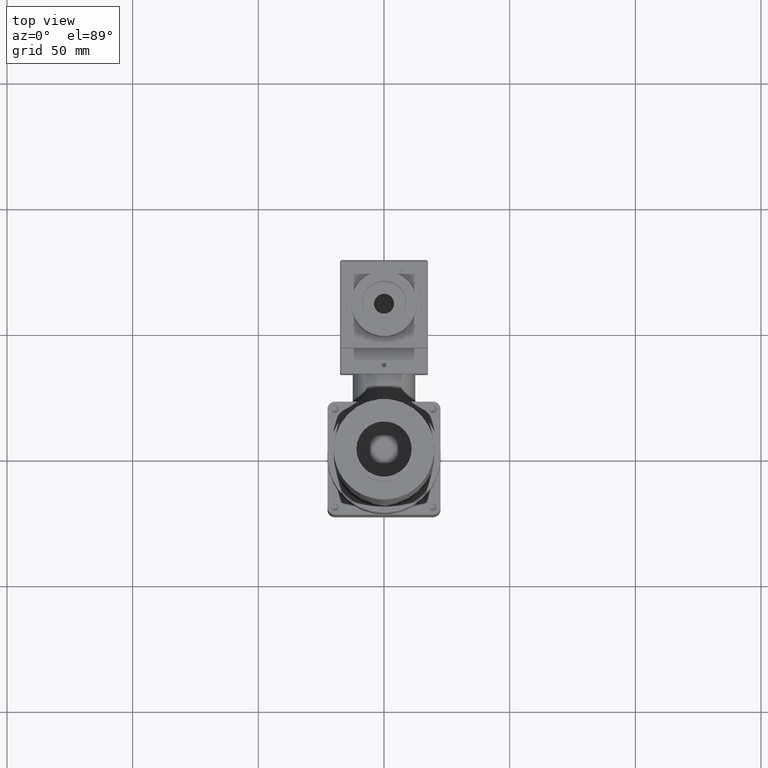
[diagram: clean part render]
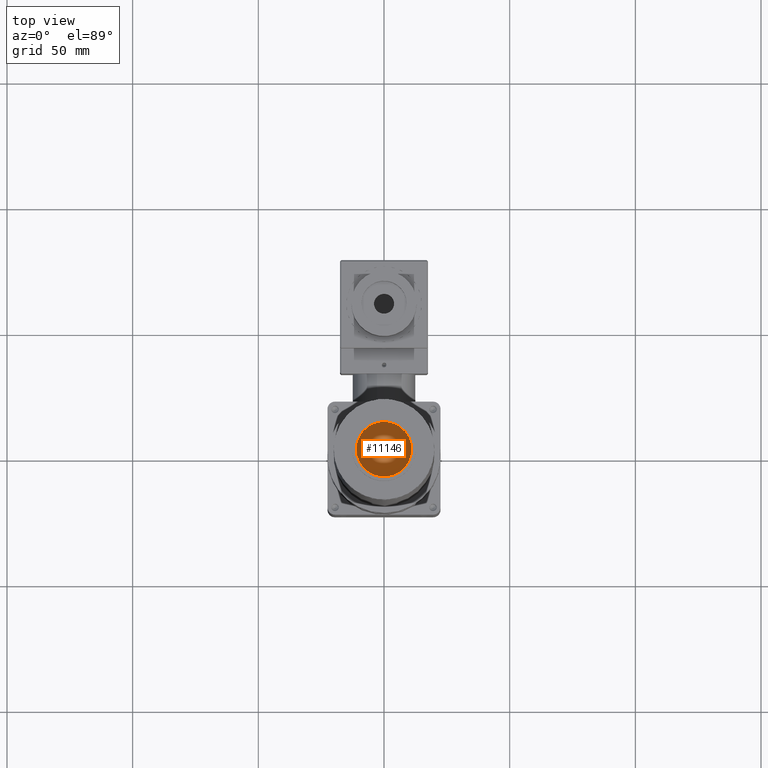
[diagram: same view with one face highlighted and labeled with its STEP entity id]
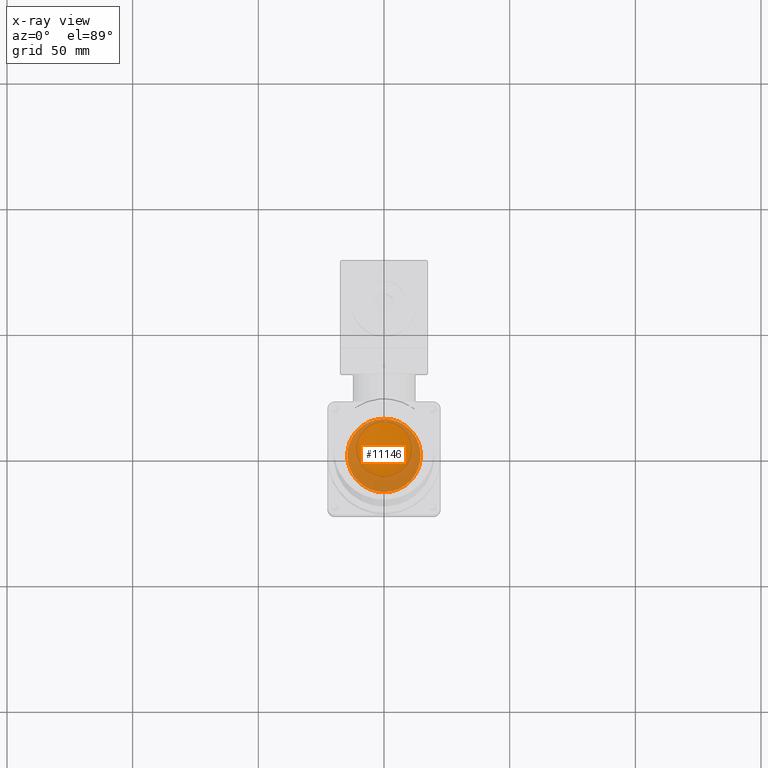
[diagram: x-ray of the same camera — body ghosted, the highlighted face saturated]
A machine part, top view. The second image highlights one B-rep face of the part: STEP entity #11146.
The next image is the same camera in x-ray: the body ghosted, the highlighted face saturated — about 44% of this face is hidden behind the body in this view.
In plain terms, the highlighted face is a freeform B-spline surface patch.
Its self-contained STEP definition (entity closure, byte-faithful):
#49 = CARTESIAN_POINT ( 'NONE',  ( 13.98928892829389703, 4.179047242817293117, 119.0000690100121403 ) ) ;
#102 = CARTESIAN_POINT ( 'NONE',  ( 13.33872966119539250, 5.949843723936270479, 119.0000062996622319 ) ) ;
#114 = CARTESIAN_POINT ( 'NONE',  ( 13.96714049367614230, -4.252429247759134334, 119.0000700877132829 ) ) ;
#174 = CARTESIAN_POINT ( 'NONE',  ( 9.714614068935082614, -10.90366322029338697, 119.0000423944047725 ) ) ;
#217 = ORIENTED_EDGE ( 'NONE', *, *, #1592, .T. ) ;
#242 = CARTESIAN_POINT ( 'NONE',  ( 14.30222755252964006, -2.933800978177821150, 118.9999969267368556 ) ) ;
#273 = CARTESIAN_POINT ( 'NONE',  ( 14.82466807185683955, 0.08023840636863302511, 119.1117562294261631 ) ) ;
#290 = CARTESIAN_POINT ( 'NONE',  ( 10.68096695742222124, -9.966510237696988739, 119.0000080796292963 ) ) ;
#341 = CARTESIAN_POINT ( 'NONE',  ( 13.03766405052734001, -6.575546831551150717, 119.0000243958658501 ) ) ;
#348 = CARTESIAN_POINT ( 'NONE',  ( -10.62985472923227981, -10.00958914178367642, 118.9999947137343526 ) ) ;
#381 = CARTESIAN_POINT ( 'NONE',  ( 9.795696448532801526, 19.86343729788184476, 121.9313010061881783 ) ) ;
#405 = CARTESIAN_POINT ( 'NONE',  ( 14.52857055771655226, -1.443983142457307078, 119.0000748554095225 ) ) ;
#459 = CARTESIAN_POINT ( 'NONE',  ( 14.60027691212936496, -0.07459434628204390794, 119.0002271557665381 ) ) ;
#464 = CARTESIAN_POINT ( 'NONE',  ( -14.59800175218796348, 1.907730671523965027, 118.9999713056936343 ) ) ;
#467 = CARTESIAN_POINT ( 'NONE',  ( 3.765347630138454971, 14.24387883867451698, 119.0000323490312297 ) ) ;
#492 = CARTESIAN_POINT ( 'NONE',  ( -29.77247551948546445, -19.75734965845709468, 111.5444585903304500 ) ) ;
#513 = CARTESIAN_POINT ( 'NONE',  ( 14.52490868798187051, -1.480399848986231115, 119.0000723194199992 ) ) ;
#520 = CARTESIAN_POINT ( 'NONE',  ( -14.22600895166551815, 3.797043167130252694, 119.0001207139474388 ) ) ;
#522 = CARTESIAN_POINT ( 'NONE',  ( 1.855219959685775466, 14.59934512551644659, 118.9999999999999858 ) ) ;
#580 = CARTESIAN_POINT ( 'NONE',  ( 14.43477159915174468, -2.190906809910932118, 119.0000405805932076 ) ) ;
#631 = CARTESIAN_POINT ( 'NONE',  ( 14.31804898287858308, -2.855429322156375793, 118.9999998998747941 ) ) ;
#682 = CARTESIAN_POINT ( 'NONE',  ( 13.97228324150767342, 4.235496302304653682, 119.0000694130087311 ) ) ;
#744 = CARTESIAN_POINT ( 'NONE',  ( 14.59467593595159940, 0.3982335792026396315, 119.0000185371151531 ) ) ;
#800 = CARTESIAN_POINT ( 'NONE',  ( 14.32289370990418220, 2.831027489430706368, 118.9999997095734869 ) ) ;
#854 = CARTESIAN_POINT ( 'NONE',  ( 14.44682934857237377, 2.109891053520653426, 119.0000401461200141 ) ) ;
#863 = CARTESIAN_POINT ( 'NONE',  ( 0.9248576082582978808, -14.60000000000000497, 119.0000000000000284 ) ) ;
#907 = CARTESIAN_POINT ( 'NONE',  ( 14.28196142005104186, 3.036931782279541192, 119.0000028630228854 ) ) ;
#974 = CARTESIAN_POINT ( 'NONE',  ( 13.15549509817016016, 6.350052910102553128, 119.0000252311006221 ) ) ;
#1040 = CARTESIAN_POINT ( 'NONE',  ( 6.469028436434528295, -13.12317483090877523, 119.0000155625834282 ) ) ;
#1096 = CARTESIAN_POINT ( 'NONE',  ( 14.20670203760342076, -3.367909880668667810, 118.9999797085169604 ) ) ;
#1141 = CARTESIAN_POINT ( 'NONE',  ( 14.71761847851205296, -0.06068584820352353887, 119.0579979190972466 ) ) ;
#1159 = CARTESIAN_POINT ( 'NONE',  ( 11.81073837458024300, -8.583733236572633984, 119.0000102345877195 ) ) ;
#1212 = CARTESIAN_POINT ( 'NONE',  ( 1.864606323168534585, -14.51194095197632095, 119.0000020767830762 ) ) ;
#1260 = CARTESIAN_POINT ( 'NONE',  ( 13.95586297795224517, -4.289328123243763002, 119.0000700516053485 ) ) ;
#1269 = CARTESIAN_POINT ( 'NONE',  ( -10.35267085353996919, -10.29480618701033912, 118.9999995363242249 ) ) ;
#1327 = CARTESIAN_POINT ( 'NONE',  ( 14.59525915230382864, -0.3734320472299847982, 119.0000174112504823 ) ) ;
#1334 = CARTESIAN_POINT ( 'NONE',  ( -5.524749319673690096, 13.51436039450954496, 118.9999991317488224 ) ) ;
#1336 = CARTESIAN_POINT ( 'NONE',  ( 5.974420244952454162, 13.32260250705850702, 119.0000088338948245 ) ) ;
#1380 = CARTESIAN_POINT ( 'NONE',  ( 14.44053562068167551, -2.152572433472477620, 119.0000442795786455 ) ) ;
#1386 = CARTESIAN_POINT ( 'NONE',  ( -7.751498990942753409, -12.38144902165378092, 118.9999717917618653 ) ) ;
#1433 = CARTESIAN_POINT ( 'NONE',  ( 14.47944028091374591, -1.876462696455243773, 119.0000194760932573 ) ) ;
#1439 = CARTESIAN_POINT ( 'NONE',  ( 12.20867790721635870, 8.006884758085238474, 118.9999988546815075 ) ) ;
#1495 = CARTESIAN_POINT ( 'NONE',  ( 14.50742051849411851, -1.643122727523406823, 119.0000373615438747 ) ) ;
#1506 = CARTESIAN_POINT ( 'NONE',  ( 6.673619439106158069, 12.98787495256370939, 119.0000881097719656 ) ) ;
#1551 = CARTESIAN_POINT ( 'NONE',  ( 14.46663529035589590, 1.969626311071227320, 119.0000318366065244 ) ) ;
#1592 = EDGE_CURVE ( 'NONE', #2819, #3998, #8576, .T. ) ;
#1600 = CARTESIAN_POINT ( 'NONE',  ( 14.53335265514515662, 1.394994577751365483, 119.0000705685189502 ) ) ;
#1662 = CARTESIAN_POINT ( 'NONE',  ( 14.15072522626515550, 3.596051165808515471, 119.0000055854096104 ) ) ;
#1729 = CARTESIAN_POINT ( 'NONE',  ( 14.58966277535328970, 0.5404924055974814623, 118.9998228932305011 ) ) ;
#1778 = CARTESIAN_POINT ( 'NONE',  ( 14.32016701465447284, 2.844788762333658738, 118.9999999552652810 ) ) ;
#1834 = CARTESIAN_POINT ( 'NONE',  ( 13.72558527100664527, 4.978276956129671582, 119.0000148353040714 ) ) ;
#1914 = CARTESIAN_POINT ( 'NONE',  ( 7.311895014826458095, -12.67356832896732577, 119.0002218127224438 ) ) ;
#1965 = CARTESIAN_POINT ( 'NONE',  ( 14.12082646283292853, -3.717562413015687017, 119.0000066801177212 ) ) ;
#2024 = CARTESIAN_POINT ( 'NONE',  ( 11.00861611815551555, -9.602055939618557190, 119.0000393198989173 ) ) ;
#2031 = CARTESIAN_POINT ( 'NONE',  ( -0.9778323831769982766, 14.60034655814700244, 119.0000000000000568 ) ) ;
#2070 = CARTESIAN_POINT ( 'NONE',  ( -0.7556830652519290759, 7.962329365547625493, 111.3167236061618297 ) ) ;
#2090 = CARTESIAN_POINT ( 'NONE',  ( 12.02519366210445995, -8.280115671545798861, 118.9999995446993637 ) ) ;
#2095 = CARTESIAN_POINT ( 'NONE',  ( -3.808755320672308819, 14.10222328893625132, 118.9999642246897480 ) ) ;
#2139 = CARTESIAN_POINT ( 'NONE',  ( 10.23913881926736380, -10.40773357091714679, 118.9999995661207777 ) ) ;
#2140 = B_SPLINE_CURVE_WITH_KNOTS ( 'NONE', 3,
 ( #9974, #2031, #4523, #9106, #2095, #10890, #5633, #9158, #8049, #3121, #1334, #2316, #3015, #7529, #8511, #2146, #5683, #5805, #3064, #7589, #6672, #10266, #6556, #9333, #11130, #520, #464, #7646, #9210, #6779, #11063, #10095, #3874, #4982, #3989, #348, #4870, #7424, #3189, #1269, #8275, #8395, #1386, #4044, #9278, #10315, #2368, #10957, #10214, #2267, #4808, #6731, #8447, #4925 ),
 .UNSPECIFIED., .F., .F.,
 ( 4, 2, 2, 1, 1, 1, 2, 2, 2, 2, 1, 1, 1, 2, 2, 2, 2, 2, 2, 2, 1, 1, 1, 2, 2, 2, 2, 1, 1, 1, 2, 2, 4 ),
 ( 0.000000000000000000, 0.06250000000000038858, 0.09375000000000061062, 0.1093750000000006939, 0.1171875000000007633, 0.1210937500000008049, 0.1230468750000007910, 0.1250000000000007772, 0.1875000000000007772, 0.2187500000000007772, 0.2343750000000007216, 0.2421875000000007494, 0.2460937500000007494, 0.2480468750000007772, 0.2500000000000007772, 0.3750000000000041078, 0.5000000000000074385, 0.6250000000000107692, 0.6875000000000124345, 0.7187500000000131006, 0.7343750000000134337, 0.7421875000000136557, 0.7460937500000136557, 0.7480468750000136557, 0.7500000000000136557, 0.8125000000000097700, 0.8437500000000076605, 0.8593750000000066613, 0.8671875000000062172, 0.8710937500000059952, 0.8730468750000058842, 0.8750000000000057732, 1.000000000000000000 ),
 .UNSPECIFIED. ) ;
#2146 = CARTESIAN_POINT ( 'NONE',  ( -8.903089967484108413, 11.58088410762506903, 118.9999762462301902 ) ) ;
#2191 = CARTESIAN_POINT ( 'NONE',  ( 14.58152615826987208, -0.7362249415561376020, 119.0000493126072882 ) ) ;
#2204 = CARTESIAN_POINT ( 'NONE',  ( 12.15130119221146998, 8.093573949462475881, 118.9999997378110379 ) ) ;
#2258 = CARTESIAN_POINT ( 'NONE',  ( 14.59987045276160700, -0.1411392709568642934, 119.0002581506835639 ) ) ;
#2267 = CARTESIAN_POINT ( 'NONE',  ( -5.658037405912185847, -13.45910413105343473, 118.9999990347679386 ) ) ;
#2269 = CARTESIAN_POINT ( 'NONE',  ( 12.17532601004629278, 8.057413823661821795, 118.9999992345351671 ) ) ;
#2312 = CARTESIAN_POINT ( 'NONE',  ( 14.59955038554628359, 0.1328104919975333365, 119.0000750403438161 ) ) ;
#2316 = CARTESIAN_POINT ( 'NONE',  ( -5.550268795324982740, 13.50390387813971849, 118.9999995834371589 ) ) ;
#2363 = CARTESIAN_POINT ( 'NONE',  ( 14.59131068973088041, -0.4951297426625539400, 118.9998417244890589 ) ) ;
#2368 = CARTESIAN_POINT ( 'NONE',  ( -5.993346080836650991, -13.31410077060129993, 118.9999929047477423 ) ) ;
#2430 = CARTESIAN_POINT ( 'NONE',  ( 14.39900607478416816, -2.415126154686352056, 119.0000113283831809 ) ) ;
#2442 = CARTESIAN_POINT ( 'NONE',  ( 11.16696013737048609, 9.408392166763924536, 119.0000337861708459 ) ) ;
#2485 = CARTESIAN_POINT ( 'NONE',  ( 14.58357518191412439, 0.6940382050204986220, 119.0000393234377896 ) ) ;
#2535 = CARTESIAN_POINT ( 'NONE',  ( 14.59820401861678540, 0.2270130761094974192, 118.9999696463336676 ) ) ;
#2594 = CARTESIAN_POINT ( 'NONE',  ( 14.53102396274386088, 1.419106311602212900, 119.0000757979401271 ) ) ;
#2654 = CARTESIAN_POINT ( 'NONE',  ( 14.32536138898392863, 2.818530583862024930, 118.9999994560118353 ) ) ;
#2704 = CARTESIAN_POINT ( 'NONE',  ( 14.58854116784995902, 0.5723134533361137199, 118.9998641358514817 ) ) ;
#2764 = CARTESIAN_POINT ( 'NONE',  ( 13.58014283935289157, 5.361644855557284650, 118.9999991373030355 ) ) ;
#2781 = CARTESIAN_POINT ( 'NONE',  ( 3.271269701134130958, -14.23681999567935463, 118.9999997153489488 ) ) ;
#2819 = VERTEX_POINT ( 'NONE', #3904 ) ;
#2843 = CARTESIAN_POINT ( 'NONE',  ( 14.05241491321492298, -3.971890811909712493, 119.0000677434549061 ) ) ;
#2893 = CARTESIAN_POINT ( 'NONE',  ( 14.26763146407217064, -3.097871063183500251, 118.9999860815100021 ) ) ;
#2925 = CARTESIAN_POINT ( 'NONE',  ( 13.28912006610375052, -10.52736241548365648, 118.3697619377703631 ) ) ;
#2947 = CARTESIAN_POINT ( 'NONE',  ( 13.13914949080024286, -6.369635020566779993, 119.0000161566890853 ) ) ;
#3010 = CARTESIAN_POINT ( 'NONE',  ( 13.34546358285479428, -5.922672340287458148, 119.0000010545214195 ) ) ;
#3015 = CARTESIAN_POINT ( 'NONE',  ( -6.479471062013606009, 13.11975610128906489, 119.0000152145591699 ) ) ;
#3057 = CARTESIAN_POINT ( 'NONE',  ( 14.31084620780470473, -2.891345337420156536, 118.9999988772045612 ) ) ;
#3064 = CARTESIAN_POINT ( 'NONE',  ( -10.01987180113928488, 10.62006956923148770, 118.9999935420786841 ) ) ;
#3067 = CARTESIAN_POINT ( 'NONE',  ( 12.14553259607138713, 8.102226881894699417, 118.9999998884410815 ) ) ;
#3113 = CARTESIAN_POINT ( 'NONE',  ( 14.43958681515510811, -2.158920487185440162, 119.0000437396330142 ) ) ;
#3121 = CARTESIAN_POINT ( 'NONE',  ( -5.470940512594712146, 13.53623076056491747, 118.9999981435597505 ) ) ;
#3182 = CARTESIAN_POINT ( 'NONE',  ( 14.51623117732515311, -1.563023562599326954, 119.0000554381137619 ) ) ;
#3189 = CARTESIAN_POINT ( 'NONE',  ( -10.37506877901335045, -10.27223554372394076, 118.9999990586347707 ) ) ;
#3214 = CARTESIAN_POINT ( 'NONE',  ( 5.079057644478827349, -26.12296589638872391, 129.0462488982334435 ) ) ;
#3233 = CARTESIAN_POINT ( 'NONE',  ( 14.52797142169444733, -1.449995506704575332, 119.0000747008784998 ) ) ;
#3280 = CARTESIAN_POINT ( 'NONE',  ( 14.59920185898245926, 0.1564029259556838081, 119.0000184441219915 ) ) ;
#3287 = CARTESIAN_POINT ( 'NONE',  ( 12.50468441804770414, 7.537247800319239133, 119.0000086293549941 ) ) ;
#3350 = CARTESIAN_POINT ( 'NONE',  ( 14.58661051087154625, 0.6228329120942301955, 118.9999467835221623 ) ) ;
#3403 = CARTESIAN_POINT ( 'NONE',  ( 14.59741627950452347, 0.2719104729787903407, 118.9999708932160587 ) ) ;
#3447 = CARTESIAN_POINT ( 'NONE',  ( 14.34213414800471398, 2.732204264907947433, 118.9999970700607150 ) ) ;
#3509 = CARTESIAN_POINT ( 'NONE',  ( 14.53036589810228740, 1.425830954767272507, 119.0000761593803844 ) ) ;
#3567 = CARTESIAN_POINT ( 'NONE',  ( 13.98037488549996787, 4.208726043768688641, 119.0000694311248850 ) ) ;
#3623 = CARTESIAN_POINT ( 'NONE',  ( 13.53703185328160430, 5.469062982271339912, 118.9999988564254068 ) ) ;
#3634 = CARTESIAN_POINT ( 'NONE',  ( 13.45317217791713915, -5.672146343782109135, 118.9999990821347780 ) ) ;
#3676 = CARTESIAN_POINT ( 'NONE',  ( 14.82466698895548873, -0.08023820858660872524, 119.1117556856132751 ) ) ;
#3699 = CARTESIAN_POINT ( 'NONE',  ( 13.89001131572517522, -4.498254821587680752, 119.0000615663203973 ) ) ;
#3760 = CARTESIAN_POINT ( 'NONE',  ( 13.94247529661928731, -4.332745986868966170, 119.0000694035642539 ) ) ;
#3809 = CARTESIAN_POINT ( 'NONE',  ( 12.12044751701390055, -8.139703855369129215, 118.9999996154518982 ) ) ;
#3823 =( BOUNDED_SURFACE ( )  B_SPLINE_SURFACE ( 3, 3, ( 
 ( #3676, #1141, #7225, #273 ),
 ( #2925, #10014, #2070, #3963 ),
 ( #10242, #5882, #6637, #381 ),
 ( #3214, #492, #7504, #10178 ) ),
 .UNSPECIFIED., .F., .F., .F. ) 
 B_SPLINE_SURFACE_WITH_KNOTS ( ( 4, 4 ),
 ( 4, 4 ),
 ( 0.000000000000000000, 1.000000000000000000 ),
 ( 0.000000000000000000, 1.000000000000000000 ),
 .UNSPECIFIED. ) 
 GEOMETRIC_REPRESENTATION_ITEM ( )  RATIONAL_B_SPLINE_SURFACE ( (
 ( 1.000000000000000000, 0.4407231842268208299, 0.4407231842268208299, 1.000000000000000000),
 ( 0.9298291696341497437, 0.4097972724281432333, 0.4097972724281432333, 0.9298291696341497437),
 ( 0.9298291696341497437, 0.4097972724281432333, 0.4097972724281432333, 0.9298291696341497437),
 ( 1.000000000000000000, 0.4407231842268208299, 0.4407231842268208299, 1.000000000000000000) ) ) 
 REPRESENTATION_ITEM ( '' )  SURFACE ( )  );
#3865 = CARTESIAN_POINT ( 'NONE',  ( 5.562670569077392990, -13.49879813905097059, 118.9999995136692661 ) ) ;
#3874 = CARTESIAN_POINT ( 'NONE',  ( -11.61649239523338828, -8.857322732390684905, 119.0000022598496656 ) ) ;
#3904 = CARTESIAN_POINT ( 'NONE',  ( 1.269532981344745348E-14, -14.60000000000002096, 119.0000000000000000 ) ) ;
#3930 = CARTESIAN_POINT ( 'NONE',  ( 14.44082463669707472, -2.150637090930129780, 119.0000444414384475 ) ) ;
#3939 = CARTESIAN_POINT ( 'NONE',  ( 10.41812439099971144, 10.22856926988836967, 118.9999991108431487 ) ) ;
#3963 = CARTESIAN_POINT ( 'NONE',  ( 13.28926214424151730, 10.52738836475656825, 118.3698332867627414 ) ) ;
#3967 = ORIENTED_EDGE ( 'NONE', *, *, #5154, .T. ) ;
#3983 = CARTESIAN_POINT ( 'NONE',  ( 14.59999188274900561, -0.02304323730815311527, 119.0000010140310849 ) ) ;
#3989 = CARTESIAN_POINT ( 'NONE',  ( -10.91939488643627065, -9.696906648994668032, 118.9999924132481084 ) ) ;
#3998 = VERTEX_POINT ( 'NONE', #5804 ) ;
#4036 = CARTESIAN_POINT ( 'NONE',  ( 14.55486930401241885, -1.146785052666193350, 118.9997499764302944 ) ) ;
#4044 = CARTESIAN_POINT ( 'NONE',  ( -7.340408385911892708, -12.62970390515078911, 118.9999724310394527 ) ) ;
#4047 = CARTESIAN_POINT ( 'NONE',  ( 11.00948562631111116, 9.592351683896318093, 119.0000255626550540 ) ) ;
#4108 = CARTESIAN_POINT ( 'NONE',  ( 14.58179233965365640, -0.7309776847401989741, 119.0000503904967104 ) ) ;
#4157 = CARTESIAN_POINT ( 'NONE',  ( 14.59361967059175313, -0.4278617122551847674, 118.9999431776595316 ) ) ;
#4211 = CARTESIAN_POINT ( 'NONE',  ( 13.84417507180882190, 4.643003717423442644, 119.0000414224448519 ) ) ;
#4278 = CARTESIAN_POINT ( 'NONE',  ( 14.45980983664114738, 2.019453768651711556, 119.0000375637882115 ) ) ;
#4330 = CARTESIAN_POINT ( 'NONE',  ( 14.23611441307725478, 3.247909892687532274, 118.9999791642308224 ) ) ;
#4381 = CARTESIAN_POINT ( 'NONE',  ( 14.45125866144191207, 2.079437387523626946, 119.0000404502752218 ) ) ;
#4443 = CARTESIAN_POINT ( 'NONE',  ( 14.58314246620762233, 0.7032660544573680061, 119.0000439290212455 ) ) ;
#4504 = CARTESIAN_POINT ( 'NONE',  ( 13.61529103112130379, 5.271427888746328172, 119.0000011979928871 ) ) ;
#4523 = CARTESIAN_POINT ( 'NONE',  ( -1.945485862357398288, 14.50117177017087045, 118.9999671680666040 ) ) ;
#4570 = CARTESIAN_POINT ( 'NONE',  ( 5.189025847196634622, -13.64772040071652093, 118.9999950695115416 ) ) ;
#4633 = CARTESIAN_POINT ( 'NONE',  ( 14.28427918945573261, -3.020500735288590199, 118.9999913724480507 ) ) ;
#4694 = CARTESIAN_POINT ( 'NONE',  ( 12.10864933980752056, -8.157262007129952863, 118.9999993936874745 ) ) ;
#4742 = CARTESIAN_POINT ( 'NONE',  ( 11.46034045006208402, -9.048713525663471202, 119.0000324675040844 ) ) ;
#4799 = CARTESIAN_POINT ( 'NONE',  ( 14.59943256556232782, 0.1405762060347130193, 119.0000527666465189 ) ) ;
#4808 = CARTESIAN_POINT ( 'NONE',  ( -5.628637839919590213, -13.47142367941740559, 118.9999995441402660 ) ) ;
#4811 = CARTESIAN_POINT ( 'NONE',  ( 5.700698364316311384, 13.44118877251267996, 118.9999992846852450 ) ) ;
#4863 = CARTESIAN_POINT ( 'NONE',  ( 14.59528607313195181, -0.3724633300578543138, 119.0000182423993635 ) ) ;
#4870 = CARTESIAN_POINT ( 'NONE',  ( -10.48196139544552530, -10.16340584304964523, 118.9999969839798126 ) ) ;
#4919 = CARTESIAN_POINT ( 'NONE',  ( 14.59229614148270748, -0.4671391039162589021, 118.9998759200213385 ) ) ;
#4925 = CARTESIAN_POINT ( 'NONE',  ( 1.269532981344745348E-14, -14.60000000000002096, 119.0000000000000000 ) ) ;
#4928 = CARTESIAN_POINT ( 'NONE',  ( 12.70203552006800507, 7.203217175903289693, 119.0000192930102969 ) ) ;
#4976 = CARTESIAN_POINT ( 'NONE',  ( 14.58572981244107325, -0.6515799999741259674, 119.0000430038499957 ) ) ;
#4982 = CARTESIAN_POINT ( 'NONE',  ( -11.15671221969591009, -9.420518124729365894, 118.9999942251402700 ) ) ;
#4985 = CARTESIAN_POINT ( 'NONE',  ( 10.76250961108526738, 9.866315447604607769, 119.0000114054911222 ) ) ;
#5039 = CARTESIAN_POINT ( 'NONE',  ( 14.46237166031628618, -2.005803614010941871, 119.0000553063746764 ) ) ;
#5047 = CARTESIAN_POINT ( 'NONE',  ( 12.16092542322948589, 8.079105137867928832, 118.9999995193259679 ) ) ;
#5088 = CARTESIAN_POINT ( 'NONE',  ( 13.91222959162708506, 4.433435504530917726, 119.0000674712644440 ) ) ;
#5140 = CARTESIAN_POINT ( 'NONE',  ( 14.59615945515249003, 0.3360248062508817690, 119.0000129107789348 ) ) ;
#5154 = EDGE_CURVE ( 'NONE', #3998, #2819, #2140, .T. ) ;
#5204 = CARTESIAN_POINT ( 'NONE',  ( 14.06775755854242149, 3.907076147509837671, 119.0000463715014263 ) ) ;
#5261 = CARTESIAN_POINT ( 'NONE',  ( 14.58281921642349133, 0.7099903689588571432, 119.0000454445172551 ) ) ;
#5314 = CARTESIAN_POINT ( 'NONE',  ( 14.59597076976144692, 0.3444143727491715268, 119.0000162899310823 ) ) ;
#5379 = CARTESIAN_POINT ( 'NONE',  ( 13.51493708139626904, 5.523307501229878014, 118.9999992500779911 ) ) ;
#5454 = CARTESIAN_POINT ( 'NONE',  ( 10.28200243459261642, -10.36538926565945928, 118.9999993444560431 ) ) ;
#5507 = CARTESIAN_POINT ( 'NONE',  ( 4.437784312098523642, -13.91131965906463286, 118.9999946984077184 ) ) ;
#5521 = EDGE_LOOP ( 'NONE', ( #217, #3967 ) ) ;
#5567 = CARTESIAN_POINT ( 'NONE',  ( 5.532977843052628408, -13.51099747838524934, 118.9999990309946583 ) ) ;
#5627 = CARTESIAN_POINT ( 'NONE',  ( 13.47772326405931764, -5.613465579551449203, 118.9999996642281417 ) ) ;
#5633 = CARTESIAN_POINT ( 'NONE',  ( -4.817865856745638276, 13.78559794284548090, 118.9999838518012751 ) ) ;
#5678 = CARTESIAN_POINT ( 'NONE',  ( 13.48418142428638511, -5.597938608619424272, 118.9999998861380988 ) ) ;
#5683 = CARTESIAN_POINT ( 'NONE',  ( -9.450776053779732067, 11.13093098352943855, 118.9999826099744240 ) ) ;
#5734 = CARTESIAN_POINT ( 'NONE',  ( 14.59424046523242779, -0.4088992573073526593, 118.9999797001955386 ) ) ;
#5799 = CARTESIAN_POINT ( 'NONE',  ( 14.60032989645034185, 0.05122719777430768257, 119.0001922240313945 ) ) ;
#5804 = CARTESIAN_POINT ( 'NONE',  ( 0.005160834930815785988, 14.59999908786928913, 119.0000000000000000 ) ) ;
#5805 = CARTESIAN_POINT ( 'NONE',  ( -9.718525913063546184, 10.89982849105560092, 118.9999871312482327 ) ) ;
#5852 = CARTESIAN_POINT ( 'NONE',  ( 14.57106247608301963, -0.9138123544591477687, 118.9998039178702243 ) ) ;
#5859 = CARTESIAN_POINT ( 'NONE',  ( 9.648435235640571150, 10.99982367556388496, 119.0000154943804063 ) ) ;
#5882 = CARTESIAN_POINT ( 'NONE',  ( -16.70499045942051808, -15.02309922658616870, 108.6231500248144926 ) ) ;
#5904 = CARTESIAN_POINT ( 'NONE',  ( 14.43815674439524521, -2.168466383641446615, 119.0000428823331475 ) ) ;
#5914 = CARTESIAN_POINT ( 'NONE',  ( 7.714197754213087066, 12.40532928346734387, 119.0002210311140800 ) ) ;
#5970 = CARTESIAN_POINT ( 'NONE',  ( 14.60005822249079799, 0.09506250478356642608, 119.0001773933425540 ) ) ;
#6019 = CARTESIAN_POINT ( 'NONE',  ( 14.59713792866291371, 0.2873733030138161393, 118.9999791555202648 ) ) ;
#6070 = CARTESIAN_POINT ( 'NONE',  ( 14.57865385397379754, 0.7954434550492830436, 119.0000504997680508 ) ) ;
#6140 = CARTESIAN_POINT ( 'NONE',  ( 14.44489739941236905, 2.123041478954583283, 119.0000395508145772 ) ) ;
#6194 = CARTESIAN_POINT ( 'NONE',  ( 14.44360186771045740, 2.131830383713529287, 119.0000390399989385 ) ) ;
#6241 = CARTESIAN_POINT ( 'NONE',  ( 14.59279663746110955, 0.4506235915922058299, 118.9998176335166136 ) ) ;
#6324 = CARTESIAN_POINT ( 'NONE',  ( 11.60429554407201458, -8.863147102245045872, 119.0000237900624995 ) ) ;
#6378 = CARTESIAN_POINT ( 'NONE',  ( 9.442031576005447846, -11.13869698303199662, 119.0000868019749447 ) ) ;
#6427 = CARTESIAN_POINT ( 'NONE',  ( 3.739619644113555186, -14.12130767953854793, 118.9999974817249466 ) ) ;
#6491 = CARTESIAN_POINT ( 'NONE',  ( 4.785772589751264405, -13.79714993007132762, 118.9999935594080114 ) ) ;
#6551 = CARTESIAN_POINT ( 'NONE',  ( 13.47040337633141149, -5.631028486736128436, 118.9999994403029291 ) ) ;
#6556 = CARTESIAN_POINT ( 'NONE',  ( -10.29213913566807292, 10.35532593231763165, 118.9999995317214001 ) ) ;
#6600 = CARTESIAN_POINT ( 'NONE',  ( 14.50094388598856021, -1.699347011136475905, 119.0000272562137980 ) ) ;
#6637 = CARTESIAN_POINT ( 'NONE',  ( -16.70478770335116536, 15.02359603518783437, 108.6232518451330549 ) ) ;
#6662 = CARTESIAN_POINT ( 'NONE',  ( 14.59728594225489751, -0.2922167784619837949, 119.0000074133336483 ) ) ;
#6672 = CARTESIAN_POINT ( 'NONE',  ( -10.23051457398234731, 10.41620475937802937, 118.9999981819793931 ) ) ;
#6725 = CARTESIAN_POINT ( 'NONE',  ( 14.59987818712382435, 0.1098719091793162461, 119.0001395922767244 ) ) ;
#6731 = CARTESIAN_POINT ( 'NONE',  ( -3.881806763633175894, -14.19726442316009951, 119.0000291750234993 ) ) ;
#6773 = CARTESIAN_POINT ( 'NONE',  ( 14.56743335949531293, -0.9686796588822300658, 118.9997456781861445 ) ) ;
#6779 = CARTESIAN_POINT ( 'NONE',  ( -13.15038568545810627, -6.414122281084194022, 119.0000935756720679 ) ) ;
#6828 = CARTESIAN_POINT ( 'NONE',  ( 14.59906968093974378, 0.1660946245841161961, 119.0000063953898888 ) ) ;
#6839 = CARTESIAN_POINT ( 'NONE',  ( 11.89258932868787433, 8.481030628462317367, 119.0000071397711849 ) ) ;
#6896 = CARTESIAN_POINT ( 'NONE',  ( 14.54687012397423906, 1.243124013027777641, 118.9999257505525208 ) ) ;
#6947 = CARTESIAN_POINT ( 'NONE',  ( 14.57237149063024439, 0.8964630362496368576, 118.9997189839726843 ) ) ;
#6998 = CARTESIAN_POINT ( 'NONE',  ( 14.59643094318662726, 0.3235402216929055830, 119.0000059788655591 ) ) ;
#7065 = CARTESIAN_POINT ( 'NONE',  ( 14.59583813334539215, 0.3500707195992217025, 119.0000174012311760 ) ) ;
#7116 = CARTESIAN_POINT ( 'NONE',  ( 13.97652199690241126, 4.221489475169754257, 119.0000694625206989 ) ) ;
#7168 = CARTESIAN_POINT ( 'NONE',  ( 13.50535092288867034, 5.546669261705791776, 118.9999995333427449 ) ) ;
#7181 = CARTESIAN_POINT ( 'NONE',  ( 13.68203370641486671, -5.100934579026016991, 119.0000163323903450 ) ) ;
#7225 = CARTESIAN_POINT ( 'NONE',  ( 14.71761929754569564, 0.06068785506310675482, 119.0579983304006930 ) ) ;
#7249 = CARTESIAN_POINT ( 'NONE',  ( 13.96527230862114877, -4.258560666971735742, 119.0000701135201098 ) ) ;
#7298 = CARTESIAN_POINT ( 'NONE',  ( 12.13132091341294760, -8.123491844990560651, 118.9999998618648220 ) ) ;
#7349 = CARTESIAN_POINT ( 'NONE',  ( 12.12830119371544590, -8.127997741672400522, 118.9999997885435477 ) ) ;
#7415 = CARTESIAN_POINT ( 'NONE',  ( 10.17466308975423317, -10.47103736284348940, 119.0000007483385502 ) ) ;
#7424 = CARTESIAN_POINT ( 'NONE',  ( -10.41791409153633019, -10.22877754644631310, 118.9999981968827427 ) ) ;
#7474 = CARTESIAN_POINT ( 'NONE',  ( 14.52868564399989637, -1.442830669741500982, 119.0000749012400973 ) ) ;
#7482 = CARTESIAN_POINT ( 'NONE',  ( 12.27439057224896679, 7.906168011629490344, 118.9999991116992533 ) ) ;
#7504 = CARTESIAN_POINT ( 'NONE',  ( -29.77220886861022819, 19.75800302705357225, 111.5445924974294911 ) ) ;
#7523 = CARTESIAN_POINT ( 'NONE',  ( 14.54444619280907958, -1.283548148861731519, 119.0000728344422356 ) ) ;
#7529 = CARTESIAN_POINT ( 'NONE',  ( -7.332516265511335618, 12.66112039703803838, 118.9999866543816154 ) ) ;
#7583 = CARTESIAN_POINT ( 'NONE',  ( 14.58182151674450289, -0.7304201714172322557, 119.0000507529380656 ) ) ;
#7589 = CARTESIAN_POINT ( 'NONE',  ( -10.16774487283426964, 10.47772805258743212, 118.9999968004249808 ) ) ;
#7593 = CARTESIAN_POINT ( 'NONE',  ( 7.304584573473821507, 12.65072442690944143, 119.0001740176353309 ) ) ;
#7642 = CARTESIAN_POINT ( 'NONE',  ( 14.58810091687109001, -0.5845961370925134570, 118.9998462486017132 ) ) ;
#7646 = CARTESIAN_POINT ( 'NONE',  ( -14.60198303182380286, -1.877921050806290904, 119.0000286943064225 ) ) ;
#7648 = CARTESIAN_POINT ( 'NONE',  ( 5.810366620365274848, 13.39415209607206769, 119.0000018667633412 ) ) ;
#7689 = CARTESIAN_POINT ( 'NONE',  ( 14.60022961060158408, -0.06147607033556458378, 119.0001737647643552 ) ) ;
#7746 = CARTESIAN_POINT ( 'NONE',  ( 14.44276561801950898, 2.137480469167686969, 119.0000386220251443 ) ) ;
#7811 = CARTESIAN_POINT ( 'NONE',  ( 14.36320057708888775, 2.620182591918679194, 118.9999939642370066 ) ) ;
#7861 = CARTESIAN_POINT ( 'NONE',  ( 13.97394613115841899, 4.230008184417874517, 119.0000694489997102 ) ) ;
#7910 = CARTESIAN_POINT ( 'NONE',  ( 14.47966960323613783, 1.872095787630100761, 119.0000214302065871 ) ) ;
#7976 = CARTESIAN_POINT ( 'NONE',  ( 14.00681559303476753, 4.120100680308627084, 119.0000668850554035 ) ) ;
#8030 = CARTESIAN_POINT ( 'NONE',  ( 13.68329816078009209, 5.093517660521822421, 119.0000075450599297 ) ) ;
#8043 = CARTESIAN_POINT ( 'NONE',  ( 13.96246342597948775, -4.267768480586788371, 119.0000701334019340 ) ) ;
#8049 = CARTESIAN_POINT ( 'NONE',  ( -5.390095980416389487, 13.56880894398148030, 118.9999966016772106 ) ) ;
#8079 = FACE_OUTER_BOUND ( 'NONE', #5521, .T. ) ;
#8098 = CARTESIAN_POINT ( 'NONE',  ( 12.08099642494742021, -8.198223665156769258, 118.9999991310813954 ) ) ;
#8168 = CARTESIAN_POINT ( 'NONE',  ( 14.23252240893537923, -3.256657080441207164, 118.9999790273611779 ) ) ;
#8221 = CARTESIAN_POINT ( 'NONE',  ( 12.70457491789033355, -7.209996808849710170, 119.0000348373334447 ) ) ;
#8267 = CARTESIAN_POINT ( 'NONE',  ( 10.02296529501512978, -10.61725217727766868, 119.0000088871515231 ) ) ;
#8275 = CARTESIAN_POINT ( 'NONE',  ( -9.670634176173143359, -10.97797745405686953, 119.0000148376247608 ) ) ;
#8329 = CARTESIAN_POINT ( 'NONE',  ( 14.59867765104570125, 0.1990997918636180919, 119.0000056067601548 ) ) ;
#8343 = CARTESIAN_POINT ( 'NONE',  ( 5.647623285775742907, 13.46358435780994611, 118.9999989890927594 ) ) ;
#8390 = CARTESIAN_POINT ( 'NONE',  ( 14.52706625001532181, -1.459047201162077645, 119.0000743029642223 ) ) ;
#8395 = CARTESIAN_POINT ( 'NONE',  ( -8.939389022718380318, -11.58262101237384378, 118.9999835830491151 ) ) ;
#8441 = CARTESIAN_POINT ( 'NONE',  ( 14.59510481208131338, -0.3792023569352032109, 119.0000146751474119 ) ) ;
#8447 = CARTESIAN_POINT ( 'NONE',  ( -1.973982979776724100, -14.60000000000003340, 119.0000000000000426 ) ) ;
#8449 = CARTESIAN_POINT ( 'NONE',  ( 6.354001936835063091, 13.14871759061790613, 119.0000426041869872 ) ) ;
#8504 = CARTESIAN_POINT ( 'NONE',  ( 14.31506824276632450, -2.870341420709073610, 118.9999995557870136 ) ) ;
#8511 = CARTESIAN_POINT ( 'NONE',  ( -8.521706115070877274, 11.86451576587347922, 118.9999759017841825 ) ) ;
#8566 = CARTESIAN_POINT ( 'NONE',  ( 14.52040968000330246, -1.524033153752988534, 119.0000649480243879 ) ) ;
#8575 = CARTESIAN_POINT ( 'NONE',  ( 10.48431472588281110, 10.16100667301396676, 118.9999995546431677 ) ) ;
#8576 = B_SPLINE_CURVE_WITH_KNOTS ( 'NONE', 3,
 ( #8800, #863, #1212, #2781, #6427, #5507, #6491, #4570, #9965, #9865, #5567, #3865, #1040, #1914, #9099, #10038, #6378, #174, #8267, #7415, #2139, #5454, #10881, #290, #2024, #4742, #6324, #1159, #9033, #2090, #8098, #4694, #3809, #7349, #7298, #8978, #8221, #341, #2947, #10951, #3010, #10787, #3634, #6551, #5627, #10089, #5678, #10832, #7181, #9152, #9916, #3699, #9202, #3760, #1260, #8043, #7249, #114, #10721, #2843, #1965, #1096, #8168, #2893, #4633, #242, #3057, #8504, #9327, #631, #9268, #10140, #10371, #2430, #9504, #11119, #580, #5904, #3113, #1380, #3930, #5039, #1433, #6600, #1495, #3182, #8566, #513, #8390, #3233, #405, #7474, #7523, #4036, #6773, #5852, #11056, #9379, #11003, #10310, #2191, #4108, #7583, #4976, #7642, #2363, #4919, #4157, #5734, #11175, #8441, #1327, #4863, #6662, #9441, #2258, #10261, #459, #7689, #11224, #3983, #10205, #5799, #5970, #6725, #2312, #4799, #3280, #6828, #8329, #2535, #3403, #6019, #9680, #6998, #5140, #5314, #7065, #744, #6241, #1729, #2704, #3350, #11346, #10651, #2485, #4443, #5261, #6070, #6947, #9554, #8790, #6896, #10534, #8840, #1600, #10432, #2594, #3509, #10482, #8678, #9730, #7910, #1551, #4278, #4381, #854, #6140, #6194, #7746, #11395, #9609, #11452, #7811, #3447, #10602, #2654, #800, #11284, #1778, #907, #4330, #1662, #8742, #5204, #8621, #7976, #49, #3567, #7116, #7861, #682, #5088, #4211, #1834, #8030, #4504, #2764, #3623, #5379, #7168, #9786, #8911, #102, #974, #10704, #4928, #3287, #11065, #7482, #1439, #2269, #5047, #2204, #3067, #6839, #10380, #2442, #4047, #4985, #10318, #8575, #3939, #10268, #9453, #5859, #11011, #5914, #7593, #1506, #8449, #1336, #7648, #4811, #8343, #467, #522, #11182 ),
 .UNSPECIFIED., .F., .F.,
 ( 4, 2, 2, 1, 1, 1, 2, 2, 2, 2, 1, 1, 1, 2, 2, 2, 2, 1, 1, 1, 1, 2, 2, 2, 2, 1, 1, 1, 1, 2, 2, 2, 2, 1, 1, 1, 1, 2, 2, 2, 2, 1, 1, 1, 1, 2, 2, 2, 1, 1, 1, 1, 2, 2, 2, 2, 1, 1, 1, 2, 2, 2, 2, 1, 1, 1, 2, 2, 2, 2, 1, 1, 2, 2, 2, 2, 2, 2, 2, 2, 2, 2, 2, 2, 1, 2, 2, 2, 2, 1, 1, 2, 2, 2, 2, 1, 1, 1, 2, 2, 2, 2, 1, 1, 1, 2, 2, 2, 1, 1, 1, 1, 2, 2, 2, 2, 1, 1, 1, 1, 2, 2, 2, 2, 1, 1, 1, 2, 2, 2, 2, 1, 1, 1, 1, 2, 2, 2, 2, 1, 1, 2, 2, 2, 2, 1, 1, 2, 2, 4 ),
 ( 0.000000000000000000, 0.06250000000000209555, 0.09375000000000317801, 0.1093750000000036915, 0.1171875000000039413, 0.1210937500000040523, 0.1230468750000040939, 0.1250000000000041356, 0.1875000000000053568, 0.2187500000000059674, 0.2343750000000062728, 0.2421875000000064948, 0.2460937500000065781, 0.2480468750000066336, 0.2500000000000066613, 0.2812500000000085487, 0.2968750000000094924, 0.3046875000000101030, 0.3085937500000103806, 0.3105468750000105471, 0.3115234375000106026, 0.3120117187500106581, 0.3125000000000107692, 0.3437500000000183187, 0.3593750000000220379, 0.3671875000000239253, 0.3710937500000248135, 0.3730468750000253131, 0.3740234375000255906, 0.3745117187500256462, 0.3750000000000257572, 0.3906250000000260902, 0.3984375000000262568, 0.4023437500000263123, 0.4042968750000263123, 0.4052734375000263678, 0.4057617187500263678, 0.4060058593750263678, 0.4062500000000263678, 0.4218750000000254796, 0.4296875000000250355, 0.4335937500000248135, 0.4355468750000247025, 0.4365234375000246470, 0.4370117187500245914, 0.4372558593750245914, 0.4375000000000245914, 0.4453125000000240918, 0.4492187500000238143, 0.4511718750000237588, 0.4521484375000236478, 0.4526367187500235922, 0.4528808593750235922, 0.4531250000000235367, 0.4609375000000222045, 0.4648437500000215938, 0.4667968750000212608, 0.4677734375000211497, 0.4682617187500210387, 0.4685058593750209832, 0.4687500000000209277, 0.4765625000000197065, 0.4804687500000190958, 0.4824218750000187628, 0.4833984375000185962, 0.4838867187500184852, 0.4841308593750184297, 0.4843750000000184297, 0.4882812500000176525, 0.4902343750000172640, 0.4912109375000170974, 0.4916992187500169864, 0.4919433593750169309, 0.4921875000000168754, 0.4960937500000162093, 0.4980468750000158207, 0.4990234375000155986, 0.5000000000000154321, 0.5019531250000150990, 0.5029296875000148770, 0.5034179687500147660, 0.5039062500000146549, 0.5058593750000143219, 0.5068359375000140998, 0.5073242187500139888, 0.5075683593750139888, 0.5078125000000139888, 0.5117187500000134337, 0.5136718750000129896, 0.5146484375000127676, 0.5151367187500127676, 0.5153808593750127676, 0.5156250000000127676, 0.5234375000000113243, 0.5273437500000105471, 0.5292968750000102141, 0.5302734375000099920, 0.5307617187500098810, 0.5310058593750098810, 0.5312500000000098810, 0.5390625000000087708, 0.5429687500000082157, 0.5449218750000079936, 0.5458984375000078826, 0.5463867187500077716, 0.5466308593750077716, 0.5468750000000077716, 0.5546875000000071054, 0.5585937500000066613, 0.5605468750000064393, 0.5615234375000064393, 0.5620117187500063283, 0.5622558593750063283, 0.5625000000000063283, 0.5781250000000039968, 0.5859375000000027756, 0.5898437500000022204, 0.5917968750000019984, 0.5927734375000017764, 0.5932617187500016653, 0.5935058593750016653, 0.5937500000000016653, 0.6093749999999982236, 0.6171874999999965583, 0.6210937499999957812, 0.6230468749999953371, 0.6240234374999951150, 0.6245117187499951150, 0.6249999999999950040, 0.6562499999999876765, 0.6718749999999840128, 0.6796874999999821254, 0.6835937499999811262, 0.6855468749999806821, 0.6865234374999804601, 0.6870117187499803491, 0.6874999999999803491, 0.7187499999999826805, 0.7343749999999839018, 0.7421874999999843459, 0.7460937499999846789, 0.7480468749999849010, 0.7499999999999850120, 0.8124999999999884537, 0.8437499999999902300, 0.8593749999999911182, 0.8671874999999914513, 0.8710937499999916733, 0.8749999999999918954, 1.000000000000000000 ),
 .UNSPECIFIED. ) ;
#8621 = CARTESIAN_POINT ( 'NONE',  ( 14.04068462626283775, 4.003858631257624978, 119.0000583366298486 ) ) ;
#8678 = CARTESIAN_POINT ( 'NONE',  ( 14.50905695735411172, 1.631895972810344153, 119.0000257696888468 ) ) ;
#8742 = CARTESIAN_POINT ( 'NONE',  ( 14.11947704587100283, 3.717371658109704935, 119.0000219252685127 ) ) ;
#8790 = CARTESIAN_POINT ( 'NONE',  ( 14.55518160035593667, 1.139863810875823003, 118.9997948736188960 ) ) ;
#8800 = CARTESIAN_POINT ( 'NONE',  ( 1.269532981344745348E-14, -14.60000000000002096, 119.0000000000000000 ) ) ;
#8840 = CARTESIAN_POINT ( 'NONE',  ( 14.53649701093109314, 1.361656646611318466, 119.0000542857564483 ) ) ;
#8911 = CARTESIAN_POINT ( 'NONE',  ( 13.49488008410872553, 5.572095227206661505, 118.9999999015678327 ) ) ;
#8978 = CARTESIAN_POINT ( 'NONE',  ( 12.44438069689153181, -7.655412232850017595, 119.0000088406519296 ) ) ;
#9033 = CARTESIAN_POINT ( 'NONE',  ( 11.91158769428557207, -8.443759444441294448, 119.0000035079313250 ) ) ;
#9099 = CARTESIAN_POINT ( 'NONE',  ( 8.502040740938323182, -11.87920194349154102, 119.0002130630272035 ) ) ;
#9106 = CARTESIAN_POINT ( 'NONE',  ( -3.348905923350523839, 14.21865660858609992, 118.9999604744743351 ) ) ;
#9152 = CARTESIAN_POINT ( 'NONE',  ( 13.80129112802156044, -4.764553097817302074, 119.0000413038122247 ) ) ;
#9158 = CARTESIAN_POINT ( 'NONE',  ( -5.200547191462469243, 13.64322530680866308, 118.9999926533103718 ) ) ;
#9202 = CARTESIAN_POINT ( 'NONE',  ( 13.91494284903272316, -4.420772780121036583, 119.0000663873725841 ) ) ;
#9210 = CARTESIAN_POINT ( 'NONE',  ( -14.23371649295308394, -3.768577237768037769, 119.0001454930417708 ) ) ;
#9268 = CARTESIAN_POINT ( 'NONE',  ( 14.31840419208202064, -2.853649528577839600, 118.9999999363808456 ) ) ;
#9278 = CARTESIAN_POINT ( 'NONE',  ( -6.703220853726503670, -12.97242517982202514, 118.9999801424471286 ) ) ;
#9327 = CARTESIAN_POINT ( 'NONE',  ( 14.31685914764729439, -2.861387757219737704, 118.9999997727874188 ) ) ;
#9333 = CARTESIAN_POINT ( 'NONE',  ( -11.69589616517014008, 8.954378197235850934, 119.0000299698301660 ) ) ;
#9379 = CARTESIAN_POINT ( 'NONE',  ( 14.57794302039459744, -0.8021680141333272784, 118.9999829206814184 ) ) ;
#9441 = CARTESIAN_POINT ( 'NONE',  ( 14.59834573250419254, -0.2272067419824065071, 119.0000004668623887 ) ) ;
#9453 = CARTESIAN_POINT ( 'NONE',  ( 10.35032621937864405, 10.29716583308909073, 118.9999995158005959 ) ) ;
#9504 = CARTESIAN_POINT ( 'NONE',  ( 14.41307340873418674, -2.330210529732748004, 119.0000216049671309 ) ) ;
#9554 = CARTESIAN_POINT ( 'NONE',  ( 14.55989669196295466, 1.075576195293605597, 118.9997281660143500 ) ) ;
#9609 = CARTESIAN_POINT ( 'NONE',  ( 14.40983694473867160, 2.351883133103747969, 119.0000075492599478 ) ) ;
#9680 = CARTESIAN_POINT ( 'NONE',  ( 14.59667461651814691, 0.3113538407723104862, 118.9999964120903257 ) ) ;
#9730 = CARTESIAN_POINT ( 'NONE',  ( 14.48753909481615842, 1.809908361999164939, 119.0000166027083139 ) ) ;
#9786 = CARTESIAN_POINT ( 'NONE',  ( 13.49893399933000993, 5.562269055156520814, 118.9999997476121223 ) ) ;
#9865 = CARTESIAN_POINT ( 'NONE',  ( 5.475757083239245482, -13.53428722542187579, 118.9999981824568351 ) ) ;
#9916 = CARTESIAN_POINT ( 'NONE',  ( 13.83827608710319979, -4.655893481869251005, 119.0000504895230051 ) ) ;
#9965 = CARTESIAN_POINT ( 'NONE',  ( 5.389863934989066685, -13.56892982318802154, 118.9999970263752544 ) ) ;
#9974 = CARTESIAN_POINT ( 'NONE',  ( 0.005160834930815785988, 14.59999908786928913, 119.0000000000000000 ) ) ;
#10014 = CARTESIAN_POINT ( 'NONE',  ( -0.7557905235862101279, -7.962066062826490764, 111.3166696425894457 ) ) ;
#10038 = CARTESIAN_POINT ( 'NONE',  ( 8.886406963986262397, -11.59445355635844699, 119.0001695187149551 ) ) ;
#10089 = CARTESIAN_POINT ( 'NONE',  ( 13.48258882777322931, -5.601770122254174922, 118.9999998295266863 ) ) ;
#10095 = CARTESIAN_POINT ( 'NONE',  ( -11.90319639469695545, -8.467968473017755571, 119.0000135860913986 ) ) ;
#10140 = CARTESIAN_POINT ( 'NONE',  ( 14.34574413567307438, -2.716282783242311982, 119.0000020358135231 ) ) ;
#10178 = CARTESIAN_POINT ( 'NONE',  ( 5.079410202147263576, 26.12303028782362446, 129.0464259461226675 ) ) ;
#10205 = CARTESIAN_POINT ( 'NONE',  ( 14.60001005998093859, 0.02282947533920562377, 118.9999979719378445 ) ) ;
#10214 = CARTESIAN_POINT ( 'NONE',  ( -5.714169160536107128, -13.43536688585947481, 118.9999980445213339 ) ) ;
#10242 = CARTESIAN_POINT ( 'NONE',  ( 9.795428370631283244, -19.86338833590403041, 121.9311663824631182 ) ) ;
#10261 = CARTESIAN_POINT ( 'NONE',  ( 14.60020975398503040, -0.1142492682820106242, 119.0003114974503404 ) ) ;
#10266 = CARTESIAN_POINT ( 'NONE',  ( -10.27222622241441918, 10.37507458918223868, 118.9999990965964969 ) ) ;
#10268 = CARTESIAN_POINT ( 'NONE',  ( 10.37376514310805931, 10.27355579908713779, 118.9999992265836681 ) ) ;
#10310 = CARTESIAN_POINT ( 'NONE',  ( 14.58111982775904103, -0.7441479333903303628, 119.0000465615867569 ) ) ;
#10315 = CARTESIAN_POINT ( 'NONE',  ( -6.379493727414229376, -13.13637127275553240, 118.9999855367321402 ) ) ;
#10318 = CARTESIAN_POINT ( 'NONE',  ( 10.63633095734071787, 10.00280252499225497, 119.0000040969696613 ) ) ;
#10371 = CARTESIAN_POINT ( 'NONE',  ( 14.36874418132534004, -2.590991107319248421, 118.9999981669896840 ) ) ;
#10380 = CARTESIAN_POINT ( 'NONE',  ( 11.61880639167855200, 8.853979713015089459, 119.0000382383654767 ) ) ;
#10432 = CARTESIAN_POINT ( 'NONE',  ( 14.53196142113807987, 1.409440534929107258, 119.0000742005359200 ) ) ;
#10482 = CARTESIAN_POINT ( 'NONE',  ( 14.52064795808452047, 1.524627165783397187, 119.0000748146006231 ) ) ;
#10534 = CARTESIAN_POINT ( 'NONE',  ( 14.54240000452752035, 1.296460656115323351, 118.9999968729633224 ) ) ;
#10602 = CARTESIAN_POINT ( 'NONE',  ( 14.33104717267178962, 2.789535593756961696, 118.9999987501217760 ) ) ;
#10651 = CARTESIAN_POINT ( 'NONE',  ( 14.58420798197945878, 0.6802824435777492518, 119.0000296769013630 ) ) ;
#10704 = CARTESIAN_POINT ( 'NONE',  ( 12.82266396100482986, 6.985551108421200084, 119.0000245053796135 ) ) ;
#10721 = CARTESIAN_POINT ( 'NONE',  ( 13.96769875544792860, -4.250596292307606383, 119.0000700788339572 ) ) ;
#10787 = CARTESIAN_POINT ( 'NONE',  ( 13.41809859458108534, -5.754930523588341451, 118.9999989916852883 ) ) ;
#10832 = CARTESIAN_POINT ( 'NONE',  ( 13.59147949481691064, -5.339079751603720503, 119.0000042715333848 ) ) ;
#10881 = CARTESIAN_POINT ( 'NONE',  ( 10.30241777753629862, -10.34510269575315000, 118.9999994950231894 ) ) ;
#10890 = CARTESIAN_POINT ( 'NONE',  ( -4.483926357360393133, 13.89634345286888717, 118.9999763442080081 ) ) ;
#10951 = CARTESIAN_POINT ( 'NONE',  ( 13.27879106090455430, -6.070105599498191395, 119.0000057100087929 ) ) ;
#10957 = CARTESIAN_POINT ( 'NONE',  ( -5.798224237123860370, -13.39951051365899737, 118.9999965364002463 ) ) ;
#11003 = CARTESIAN_POINT ( 'NONE',  ( 14.58012325494753014, -0.7630000742229540167, 119.0000329704066786 ) ) ;
#11011 = CARTESIAN_POINT ( 'NONE',  ( 8.905120217415069206, 11.60967311766363785, 119.0002352923785764 ) ) ;
#11056 = CARTESIAN_POINT ( 'NONE',  ( 14.57577437227267403, -0.8382588015923446711, 118.9999197553280652 ) ) ;
#11063 = CARTESIAN_POINT ( 'NONE',  ( -12.70124524369778563, -7.264209956538981494, 119.0000556786312558 ) ) ;
#11065 = CARTESIAN_POINT ( 'NONE',  ( 12.40190531729120949, 7.706142390058129621, 119.0000027928441853 ) ) ;
#11119 = CARTESIAN_POINT ( 'NONE',  ( 14.42780579902336768, -2.236453976247907871, 119.0000350019973752 ) ) ;
#11130 = CARTESIAN_POINT ( 'NONE',  ( -12.77527895991447515, 7.320423381482469516, 119.0001120070303386 ) ) ;
#11146 = ADVANCED_FACE ( 'NONE', ( #8079 ), #3823, .F. ) ;
#11175 = CARTESIAN_POINT ( 'NONE',  ( 14.59486379659947630, -0.3879392328033406390, 119.0000081906999867 ) ) ;
#11182 = CARTESIAN_POINT ( 'NONE',  ( 0.005160834930815785988, 14.59999908786928913, 119.0000000000000000 ) ) ;
#11224 = CARTESIAN_POINT ( 'NONE',  ( 14.60008842026937081, -0.03496040012847002887, 119.0000611623936919 ) ) ;
#11284 = CARTESIAN_POINT ( 'NONE',  ( 14.32124167308454687, 2.839374412280569082, 118.9999998653459130 ) ) ;
#11346 = CARTESIAN_POINT ( 'NONE',  ( 14.58558046413672038, 0.6487889844779717308, 118.9999920338246113 ) ) ;
#11395 = CARTESIAN_POINT ( 'NONE',  ( 14.42723343899613830, 2.242148033561441878, 119.0000297398819242 ) ) ;
#11452 = CARTESIAN_POINT ( 'NONE',  ( 14.37946219378848589, 2.528712365047483424, 118.9999956577935336 ) ) ;